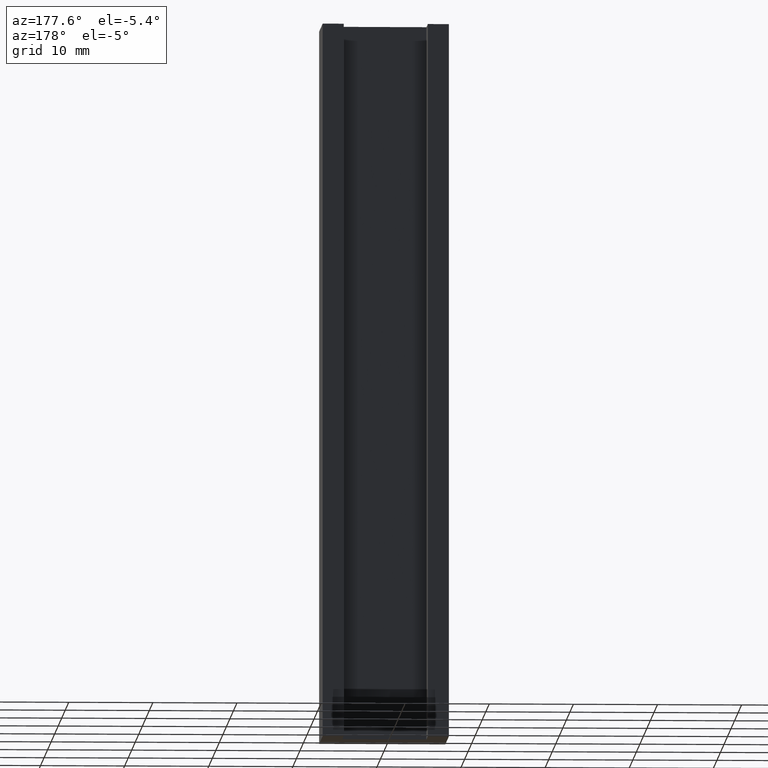
[diagram: clean part render]
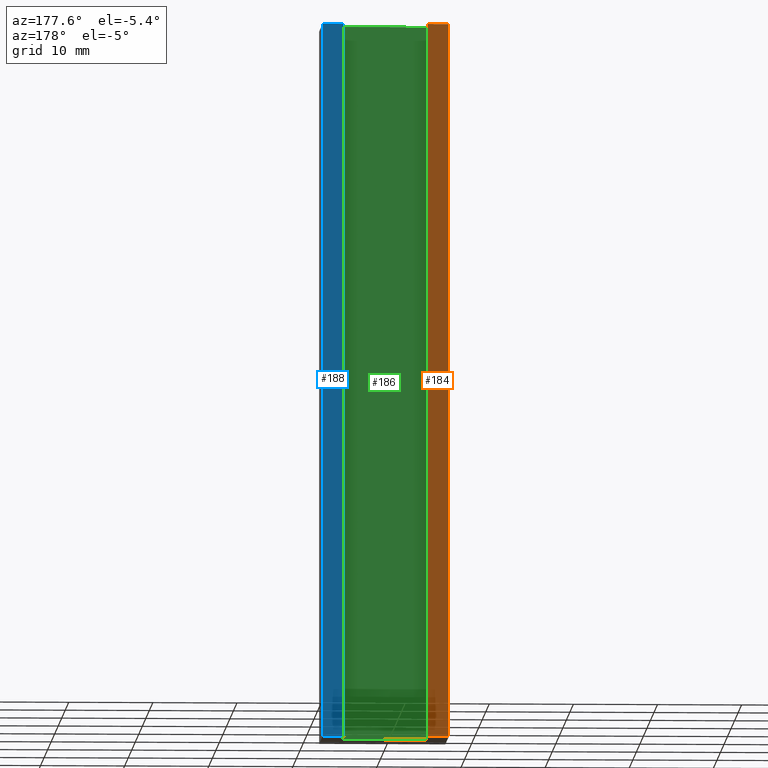
[diagram: same view with three faces highlighted in distinct colors, each labeled with its STEP entity id]
A machine part, auxiliary view with three faces highlighted in distinct colors.
Their STEP definitions:

[orange] entity #184 — the highlighted planar face has unit normal (-0, 1, 0).
#18=FACE_OUTER_BOUND('',#28,.T.);
#28=EDGE_LOOP('',(#136,#137,#138,#139));
#39=LINE('',#281,#63);
#45=LINE('',#293,#69);
#47=LINE('',#297,#71);
#48=LINE('',#298,#72);
#63=VECTOR('',#232,10.);
#69=VECTOR('',#240,10.);
#71=VECTOR('',#244,10.);
#72=VECTOR('',#245,10.);
#87=VERTEX_POINT('',#278);
#88=VERTEX_POINT('',#280);
#93=VERTEX_POINT('',#291);
#94=VERTEX_POINT('',#296);
#103=EDGE_CURVE('',#88,#87,#39,.T.);
#109=EDGE_CURVE('',#87,#93,#45,.T.);
#111=EDGE_CURVE('',#93,#94,#47,.T.);
#112=EDGE_CURVE('',#88,#94,#48,.T.);
#136=ORIENTED_EDGE('',*,*,#111,.T.);
#137=ORIENTED_EDGE('',*,*,#112,.F.);
#138=ORIENTED_EDGE('',*,*,#103,.T.);
#139=ORIENTED_EDGE('',*,*,#109,.T.);
#174=PLANE('',#217);
#184=ADVANCED_FACE('',(#18),#174,.T.);
#217=AXIS2_PLACEMENT_3D('',#295,#242,#243);
#232=DIRECTION('',(-1.,-4.44089209850063E-16,0.));
#240=DIRECTION('',(0.,0.,1.));
#242=DIRECTION('center_axis',(-4.44089209850063E-16,1.,0.));
#243=DIRECTION('ref_axis',(0.,0.,1.));
#244=DIRECTION('',(1.,4.44089209850063E-16,0.));
#245=DIRECTION('',(0.,0.,1.));
#278=CARTESIAN_POINT('',(-7.5,5.,-42.5));
#280=CARTESIAN_POINT('',(-5.,5.,-42.5));
#281=CARTESIAN_POINT('',(-5.,5.,-42.5));
#291=CARTESIAN_POINT('',(-7.5,5.,42.5));
#293=CARTESIAN_POINT('',(-7.5,5.,0.));
#295=CARTESIAN_POINT('Origin',(-7.5,5.,0.));
#296=CARTESIAN_POINT('',(-5.,5.,42.5));
#297=CARTESIAN_POINT('',(-5.,5.,42.5));
#298=CARTESIAN_POINT('',(-5.,5.,0.));

[blue] entity #188 — the highlighted planar face has unit normal (0, 1, 0).
#22=FACE_OUTER_BOUND('',#32,.T.);
#32=EDGE_LOOP('',(#152,#153,#154,#155));
#43=LINE('',#288,#67);
#54=LINE('',#310,#78);
#55=LINE('',#313,#79);
#56=LINE('',#314,#80);
#67=VECTOR('',#236,10.);
#78=VECTOR('',#257,10.);
#79=VECTOR('',#260,10.);
#80=VECTOR('',#261,10.);
#85=VERTEX_POINT('',#274);
#91=VERTEX_POINT('',#286);
#97=VERTEX_POINT('',#308);
#98=VERTEX_POINT('',#312);
#107=EDGE_CURVE('',#85,#91,#43,.T.);
#118=EDGE_CURVE('',#91,#97,#54,.T.);
#119=EDGE_CURVE('',#97,#98,#55,.T.);
#120=EDGE_CURVE('',#85,#98,#56,.T.);
#152=ORIENTED_EDGE('',*,*,#119,.T.);
#153=ORIENTED_EDGE('',*,*,#120,.F.);
#154=ORIENTED_EDGE('',*,*,#107,.T.);
#155=ORIENTED_EDGE('',*,*,#118,.T.);
#178=PLANE('',#221);
#188=ADVANCED_FACE('',(#22),#178,.T.);
#221=AXIS2_PLACEMENT_3D('',#311,#258,#259);
#236=DIRECTION('',(-1.,4.44089209850063E-16,0.));
#257=DIRECTION('',(0.,0.,1.));
#258=DIRECTION('center_axis',(4.44089209850063E-16,1.,0.));
#259=DIRECTION('ref_axis',(0.,0.,1.));
#260=DIRECTION('',(1.,-4.44089209850063E-16,0.));
#261=DIRECTION('',(0.,0.,1.));
#274=CARTESIAN_POINT('',(7.5,5.,-42.5));
#286=CARTESIAN_POINT('',(5.,5.,-42.5));
#288=CARTESIAN_POINT('',(7.5,5.,-42.5));
#308=CARTESIAN_POINT('',(5.,5.,42.5));
#310=CARTESIAN_POINT('',(5.,5.,0.));
#311=CARTESIAN_POINT('Origin',(5.,5.,0.));
#312=CARTESIAN_POINT('',(7.5,5.,42.5));
#313=CARTESIAN_POINT('',(7.5,5.,42.5));
#314=CARTESIAN_POINT('',(7.5,5.,0.));

[green] entity #186 — the highlighted planar face has unit normal (0, 1, 0).
#20=FACE_OUTER_BOUND('',#30,.T.);
#30=EDGE_LOOP('',(#144,#145,#146,#147));
#41=LINE('',#285,#65);
#50=LINE('',#302,#74);
#51=LINE('',#305,#75);
#52=LINE('',#306,#76);
#65=VECTOR('',#234,10.);
#74=VECTOR('',#249,10.);
#75=VECTOR('',#252,10.);
#76=VECTOR('',#253,10.);
#89=VERTEX_POINT('',#282);
#90=VERTEX_POINT('',#284);
#95=VERTEX_POINT('',#300);
#96=VERTEX_POINT('',#304);
#105=EDGE_CURVE('',#90,#89,#41,.T.);
#114=EDGE_CURVE('',#89,#95,#50,.T.);
#115=EDGE_CURVE('',#95,#96,#51,.T.);
#116=EDGE_CURVE('',#90,#96,#52,.T.);
#144=ORIENTED_EDGE('',*,*,#115,.T.);
#145=ORIENTED_EDGE('',*,*,#116,.F.);
#146=ORIENTED_EDGE('',*,*,#105,.T.);
#147=ORIENTED_EDGE('',*,*,#114,.T.);
#176=PLANE('',#219);
#186=ADVANCED_FACE('',(#20),#176,.T.);
#219=AXIS2_PLACEMENT_3D('',#303,#250,#251);
#234=DIRECTION('',(-1.,0.,0.));
#249=DIRECTION('',(0.,0.,1.));
#250=DIRECTION('center_axis',(0.,1.,0.));
#251=DIRECTION('ref_axis',(0.,0.,1.));
#252=DIRECTION('',(1.,0.,0.));
#253=DIRECTION('',(0.,0.,1.));
#282=CARTESIAN_POINT('',(-5.,1.,-42.5));
#284=CARTESIAN_POINT('',(5.,1.,-42.5));
#285=CARTESIAN_POINT('',(5.,1.,-42.5));
#300=CARTESIAN_POINT('',(-5.,1.,42.5));
#302=CARTESIAN_POINT('',(-5.,1.,0.));
#303=CARTESIAN_POINT('Origin',(-5.,1.,0.));
#304=CARTESIAN_POINT('',(5.,1.,42.5));
#305=CARTESIAN_POINT('',(5.,1.,42.5));
#306=CARTESIAN_POINT('',(5.,1.,0.));